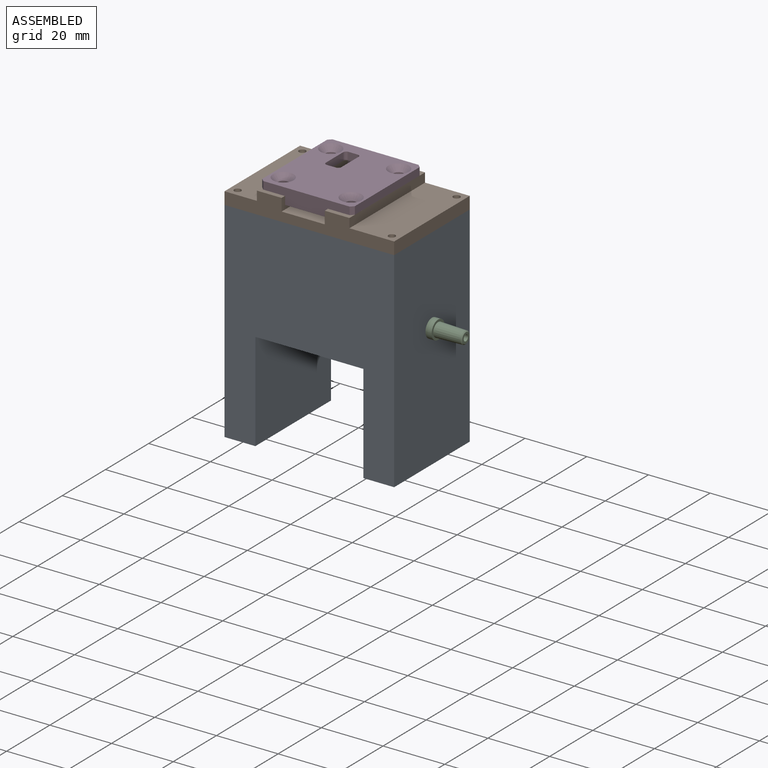
[diagram: assembled view]
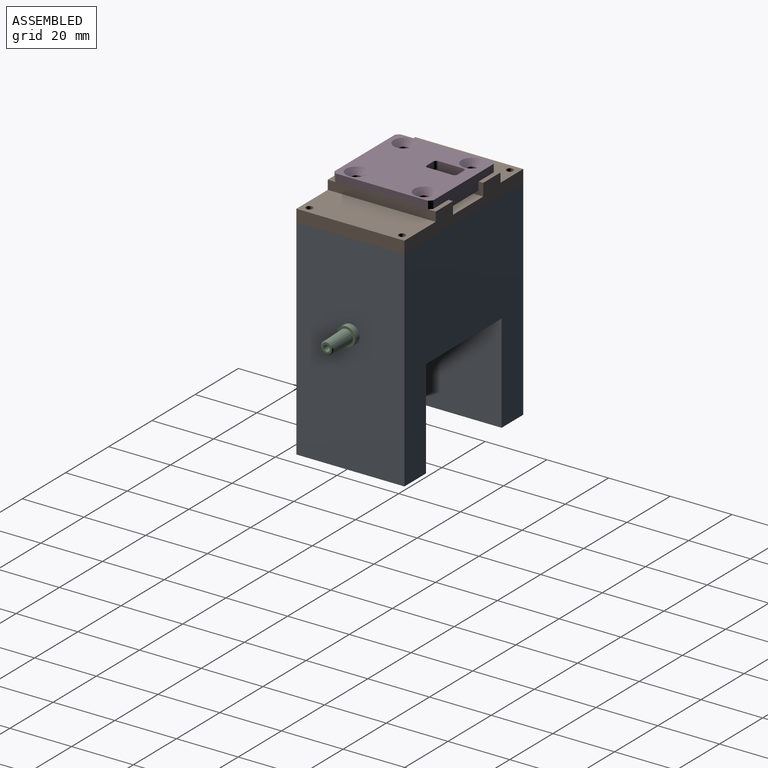
[diagram: assembled view, second angle]
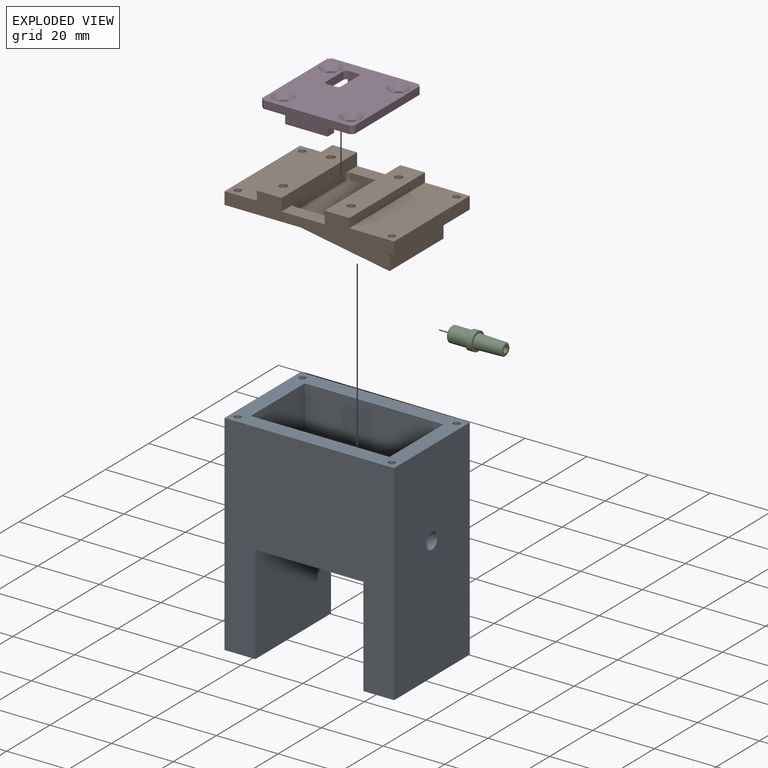
[diagram: exploded view]
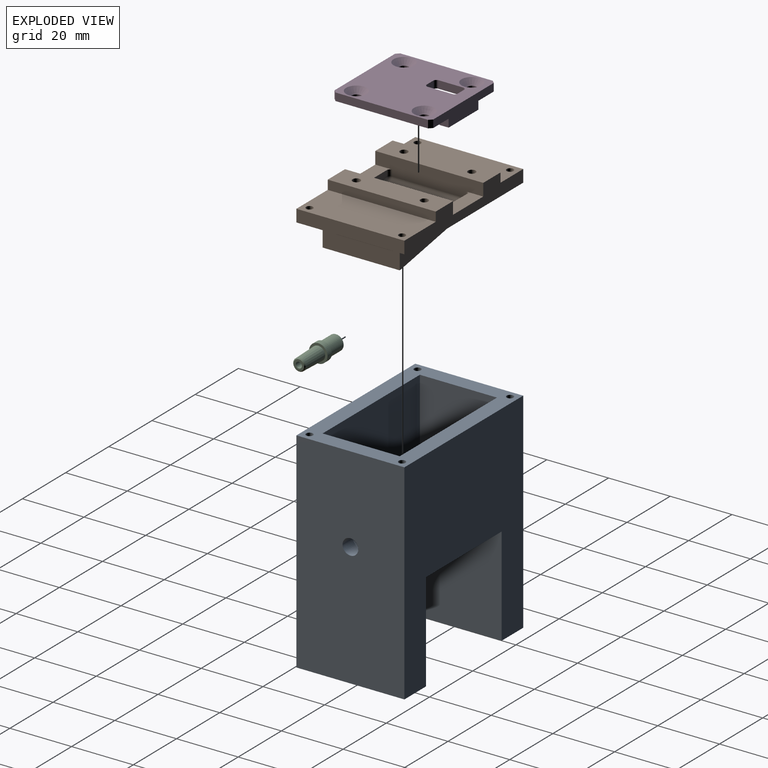
[diagram: exploded view, second angle]
ASSEMBLY  parts=4 mates=7
PART A: 29 faces, bbox 55x35x68 mm
  f0: plane 35x35mm, normal (0,0,-1), area 1225mm2, adj f14,f16,f25,f27
  f1: plane 25x10mm, normal (1,0,0), area 229.6mm2, adj f2,f10,f12,f13,f15
  f2: plane 35x25mm, normal (0,0,1), area 875mm2, adj f1,f3,f13,f15
  f3: plane 25x10mm, normal (-1,0,0), area 229.6mm2, adj f2,f4,f12,f13,f15
  f4: plane 25x5mm, normal (0,0,1), area 125mm2, adj f3,f5,f13,f15
  f5: plane 31x25mm, normal (1,0,0), area 775mm2, adj f4,f8,f13,f15
  f6: plane 68x35mm, normal (-1,0,0), area 2380mm2, adj f8,f14,f16,f26
  f7: plane 68x35mm, normal (1,0,0), area 2359.6mm2, adj f8,f11,f14,f16,f28
  f8: plane 55x35mm, normal (0,0,1), area 784.8mm2, adj f5,f6,f7,f9,f13,f14,f15,f16
  f9: plane 31x25mm, normal (-1,0,0), area 754.6mm2, adj f8,f10,f11,f13,f15
  f10: plane 25x5mm, normal (0,0,1), area 125mm2, adj f1,f9,f13,f15
  f11: cylinder r=2.55mm len=5.1mm, axis (1,0,0), area 80.1mm2, adj f7,f9
  f12: cylinder r=2.55mm len=35mm, axis (1,0,0), area 560.8mm2, adj f1,f3
  f13: plane 45x31mm, normal (0,1,0), area 1045mm2, adj f1,f2,f3,f4,f5,f8,f9,f10
  f14: plane 68x55mm, normal (0,-1,0), area 2620mm2, adj f0,f6,f7,f8,f25,f26,f27,f28
  f15: plane 45x31mm, normal (0,-1,0), area 1045mm2, adj f1,f2,f3,f4,f5,f8,f9,f10
  f16: plane 68x55mm, normal (0,1,0), area 2620mm2, adj f0,f6,f7,f8,f25,f26,f27,f28
  f17: cone r=0mm half-angle=59deg, axis (0,0,1), area 4.4mm2, adj f18
  f18: cylinder r=1.1mm len=15mm, axis (0,0,1), area 103.7mm2, adj f8,f17
  f19: cone r=0mm half-angle=59deg, axis (0,0,1), area 4.4mm2, adj f20
  f20: cylinder r=1.1mm len=15mm, axis (0,0,1), area 103.7mm2, adj f8,f19
  f21: cone r=0mm half-angle=59deg, axis (0,0,1), area 4.4mm2, adj f22
  f22: cylinder r=1.1mm len=15mm, axis (0,0,1), area 103.7mm2, adj f8,f21
  f23: cone r=0mm half-angle=59deg, axis (0,0,1), area 4.4mm2, adj f24
  f24: cylinder r=1.1mm len=15mm, axis (0,0,1), area 103.7mm2, adj f8,f23
  f25: plane 35x32mm, normal (1,0,0), area 1120mm2, adj f0,f14,f16,f26
  f26: plane 35x10mm, normal (0,0,-1), area 350mm2, adj f6,f14,f16,f25
  f27: plane 35x32mm, normal (-1,0,0), area 1120mm2, adj f0,f14,f16,f28
  f28: plane 35x10mm, normal (0,0,-1), area 350mm2, adj f7,f14,f16,f27
PART B: 50 faces, bbox 55.1x35.1x15 mm
  f0: plane 35x6mm, normal (1,0,0), area 188mm2, adj f3,f7,f14,f15,f22,f36,f38,f40
  f1: plane 24x12mm, normal (0,0,1), area 258.3mm2, adj f26,f27,f28,f29,f30,f31,f32,f33
  f2: plane 45.09x25.09mm, normal (-0.17,0,-0.98), area 1092.3mm2, adj f4,f10,f12,f13,f26,f27,f28,f29
  f3: plane 14x5.5mm, normal (0,0,1), area 63.4mm2, adj f0,f15,f23,f25,f36,f41
  f4: plane 55x35mm, normal (0,0,-1), area 784.8mm2, adj f2,f5,f8,f9,f10,f11,f12,f13
  f5: plane 35x4mm, normal (-1,0,0), area 140mm2, adj f4,f14,f15,f19
  f6: plane 35x8mm, normal (0,0,1), area 270.2mm2, adj f14,f15,f20,f23,f48,f49
  f7: plane 35x8mm, normal (0,0,1), area 270.2mm2, adj f0,f14,f15,f18,f46,f47
  f8: cylinder r=1.1mm len=4mm, axis (0,0,1), area 27.6mm2, adj f4,f21
  f9: cylinder r=1.1mm len=4mm, axis (0,0,1), area 27.6mm2, adj f4,f21
  f10: plane 25x7.93mm, normal (1,0,0), area 198.4mm2, adj f2,f4,f12,f13
  f11: plane 35x4mm, normal (1,0,0), area 140mm2, adj f4,f14,f15,f21
  f12: plane 45x7.93mm, normal (0,-1,0), area 178.5mm2, adj f2,f4,f10
  f13: plane 45x7.93mm, normal (0,1,0), area 178.5mm2, adj f2,f4,f10
  f14: plane 55x7mm, normal (0,1,0), area 254mm2, adj f0,f4,f5,f6,f7,f11,f18,f19
  f15: plane 55x7mm, normal (0,-1,0), area 254mm2, adj f0,f3,f4,f5,f6,f7,f11,f18
  f16: cylinder r=1.1mm len=4mm, axis (0,0,1), area 27.6mm2, adj f4,f19
  f17: cylinder r=1.1mm len=4mm, axis (0,0,1), area 27.6mm2, adj f4,f19
  f18: plane 35x3mm, normal (-1,0,0), area 105mm2, adj f7,f14,f15,f19
  f19: plane 35x10.5mm, normal (0,0,1), area 359.9mm2, adj f5,f14,f15,f16,f17,f18
  f20: plane 35x3mm, normal (1,0,0), area 105mm2, adj f6,f14,f15,f21
  f21: plane 35x14.5mm, normal (0,0,1), area 499.9mm2, adj f8,f9,f11,f14,f15,f20
  f22: plane 14x5.5mm, normal (0,0,1), area 63.4mm2, adj f0,f14,f23,f24,f40,f45
  f23: plane 35x6mm, normal (-1,0,0), area 188mm2, adj f3,f6,f14,f15,f22,f41,f43,f45
  f24: plane 12x2mm, normal (0,-1,0), area 24mm2, adj f22,f31,f40,f45
  f25: plane 12x2mm, normal (0,1,0), area 24mm2, adj f3,f30,f36,f41
  f26: plane 3.95x1.8mm, normal (0,-1,0), area 6.8mm2, adj f1,f2,f32,f35
  f27: plane 8.8x3.53mm, normal (1,0,0), area 31mm2, adj f1,f2,f32,f33
  f28: plane 3.95x1.8mm, normal (0,1,0), area 6.8mm2, adj f1,f2,f33,f34
  f29: plane 8.8x4.06mm, normal (-1,0,0), area 35.7mm2, adj f1,f2,f34,f35
  f30: cylinder r=1mm len=12mm, axis (-1,0,0), area 18.8mm2, adj f1,f25,f37,f42
  f31: cylinder r=1mm len=12mm, axis (-1,0,0), area 18.8mm2, adj f1,f24,f39,f44
  f32: cylinder r=0.6mm len=3.63mm, axis (0,0,1), area 3.4mm2, adj f1,f2,f26,f27
  f33: cylinder r=0.6mm len=3.63mm, axis (0,0,-1), area 3.4mm2, adj f1,f2,f27,f28
  f34: cylinder r=0.6mm len=4.06mm, axis (0,0,1), area 3.8mm2, adj f1,f2,f28,f29
  f35: cylinder r=0.6mm len=4.06mm, axis (0,0,-1), area 3.8mm2, adj f1,f2,f26,f29
  f36: cylinder r=1mm len=2mm, axis (0,0,-1), area 3.1mm2, adj f0,f3,f25,f37
  f37: sphere r=1mm, area 1.6mm2, adj f30,f36,f38
  f38: cylinder r=1mm len=24mm, axis (0,-1,0), area 37.7mm2, adj f0,f1,f37,f39
  f39: sphere r=1mm, area 1.6mm2, adj f31,f38,f40
  f40: cylinder r=1mm len=2mm, axis (0,0,1), area 3.1mm2, adj f0,f22,f24,f39
  f41: cylinder r=1mm len=2mm, axis (0,0,1), area 3.1mm2, adj f3,f23,f25,f42
  f42: sphere r=1mm, area 1.6mm2, adj f30,f41,f43
  f43: cylinder r=1mm len=24mm, axis (0,1,0), area 37.7mm2, adj f1,f23,f42,f44
  f44: sphere r=1mm, area 1.6mm2, adj f31,f43,f45
  f45: cylinder r=1mm len=2mm, axis (0,0,-1), area 3.1mm2, adj f22,f23,f24,f44
  f46: cylinder r=1.25mm len=8.9mm, axis (0,0,1), area 68.1mm2, adj f2,f7
  f47: cylinder r=1.25mm len=8.9mm, axis (0,0,1), area 68.1mm2, adj f2,f7
  f48: cylinder r=1.25mm len=12.77mm, axis (0,0,1), area 98.6mm2, adj f2,f6
  f49: cylinder r=1.25mm len=12.77mm, axis (0,0,1), area 98.6mm2, adj f2,f6
PART C: 10 faces, bbox 17.5x6x6 mm
  f0: plane 4.4x4.4mm, normal (-1,0,0), area 12.1mm2, adj f1,f9
  f1: cylinder r=1mm len=17.5mm, axis (-1,0,0), area 110mm2, adj f0,f2
  f2: plane 3.42x3.42mm, normal (1,0,0), area 6mm2, adj f1,f8
  f3: cone r=2mm half-angle=1.6deg, axis (-1,0,0), area 116.5mm2, adj f4,f8
  f4: plane 6x6mm, normal (1,0,0), area 12.4mm2, adj f3,f5
  f5: cylinder r=3mm len=6mm, axis (-1,0,0), area 37.7mm2, adj f4,f6
  f6: plane 6x6mm, normal (-1,0,0), area 8.6mm2, adj f5,f7
  f7: cylinder r=2.5mm len=6.2mm, axis (-1,0,0), area 97.4mm2, adj f6,f9
  f8: cone r=2.01mm half-angle=45.8deg, axis (-1,0,0), area 4.9mm2, adj f2,f3
  f9: cone r=2.2mm half-angle=45deg, axis (1,0,0), area 6.3mm2, adj f0,f7
PART D: 34 faces, bbox 30x5.1x32 mm
  f0: plane 28x5.1mm, normal (0,0,-1), area 105.9mm2, adj f1,f2,f5,f9,f10,f30,f32
  f1: plane 2.5x1mm, normal (0.71,0,-0.71), area 3.5mm2, adj f0,f2,f10,f11
  f2: plane 32x30mm, normal (0,-1,0), area 793.9mm2, adj f0,f1,f3,f4,f5,f6,f7,f8
  f3: plane 13.8x2.6mm, normal (0,0,-1), area 35.9mm2, adj f2,f4,f29,f31
  f4: plane 3x2.6mm, normal (-1,0,0), area 7.8mm2, adj f2,f3,f6,f31
  f5: plane 3x2.6mm, normal (-1,0,0), area 7.8mm2, adj f0,f2,f32,f33
  f6: plane 28x5.1mm, normal (0,0,1), area 105.9mm2, adj f2,f4,f7,f10,f12,f29,f31
  f7: plane 2.5x1mm, normal (-0.71,0,0.71), area 3.5mm2, adj f2,f6,f8,f10
  f8: plane 30x2.5mm, normal (-1,0,0), area 75mm2, adj f2,f7,f9,f10
  f9: plane 2.5x1mm, normal (-0.71,0,-0.71), area 3.5mm2, adj f0,f2,f8,f10
  f10: plane 32x30mm, normal (0,1,0), area 767mm2, adj f0,f1,f6,f7,f8,f9,f11,f12
  f11: plane 30x2.5mm, normal (1,0,0), area 75mm2, adj f1,f2,f10,f12
  f12: plane 2.5x1mm, normal (0.71,0,0.71), area 3.5mm2, adj f2,f6,f10,f11
  f13: cone r=2.48mm half-angle=45deg, axis (0,1,0), area 38.8mm2, adj f10,f14
  f14: cylinder r=1.6mm len=3.2mm, axis (0,1,0), area 7.4mm2, adj f2,f13
  f15: cone r=2.48mm half-angle=45deg, axis (0,1,0), area 38.8mm2, adj f10,f16
  f16: cylinder r=1.6mm len=3.2mm, axis (0,1,0), area 7.4mm2, adj f2,f15
  f17: cone r=2.48mm half-angle=45deg, axis (0,1,0), area 38.8mm2, adj f10,f18
  f18: cylinder r=1.6mm len=3.2mm, axis (0,1,0), area 7.4mm2, adj f2,f17
  f19: cone r=2.48mm half-angle=45deg, axis (0,1,0), area 38.8mm2, adj f10,f20
  f20: cylinder r=1.6mm len=3.2mm, axis (0,1,0), area 7.4mm2, adj f2,f19
  f21: plane 3x2.5mm, normal (0,0,-1), area 7.5mm2, adj f2,f10,f22,f28
  f22: cylinder r=1mm len=2.5mm, axis (0,-1,0), area 3.9mm2, adj f2,f10,f21,f23
  f23: plane 8x2.5mm, normal (-1,0,0), area 20mm2, adj f2,f10,f22,f24
  f24: cylinder r=1mm len=2.5mm, axis (0,-1,0), area 3.9mm2, adj f2,f10,f23,f25
  f25: plane 3x2.5mm, normal (0,0,1), area 7.5mm2, adj f2,f10,f24,f26
  f26: cylinder r=1mm len=2.5mm, axis (0,-1,0), area 3.9mm2, adj f2,f10,f25,f27
  f27: plane 8x2.5mm, normal (1,0,0), area 20mm2, adj f2,f10,f26,f28
  f28: cylinder r=1mm len=2.5mm, axis (0,-1,0), area 3.9mm2, adj f2,f10,f21,f27
  f29: plane 3x2.6mm, normal (1,0,0), area 7.8mm2, adj f2,f3,f6,f31
  f30: plane 3x2.6mm, normal (1,0,0), area 7.8mm2, adj f0,f2,f32,f33
  f31: plane 13.8x3mm, normal (0,-1,0), area 41.4mm2, adj f3,f4,f6,f29
  f32: plane 13.8x3mm, normal (0,-1,0), area 41.4mm2, adj f0,f5,f30,f33
  f33: plane 13.8x2.6mm, normal (0,0,1), area 35.9mm2, adj f2,f5,f30,f32
PLACE A t=(0.42,-0.08,12.52)mm fixed
PLACE B t=(0.42,-0.08,33.52)mm
PLACE C t=(21.42,-0.08,5.52)mm
PLACE D rot(axis=(0,0.71,0.71),180deg) t=(-1.58,-0.08,40.52)mm
MATE planar C.f1 <-> A.f7  axis (-1,0,0) through (27.92,-0.08,5.52)mm
MATE cylindrical A.f11 <-> C.f1  axis (1,0,0) through (27.92,-0.08,5.52)mm
MATE cylindrical D.f13 <-> B.f48  axis (0,0,-1) through (9.42,-11.08,40.52)mm
MATE cylindrical D.f19 <-> B.f46  axis (0,0,-1) through (-12.58,10.92,40.52)mm
MATE planar D.f2 <-> B.f7  axis (0,0,-1) through (-1.3,-0.51,40.52)mm
MATE slider B.f17 <-> A.f21  axis (0,0,1) through (-24.58,-15.08,37.52)mm
MATE planar B.f1 <-> A.f8  axis (0,0,-1) through (0.42,-0.08,33.52)mm
